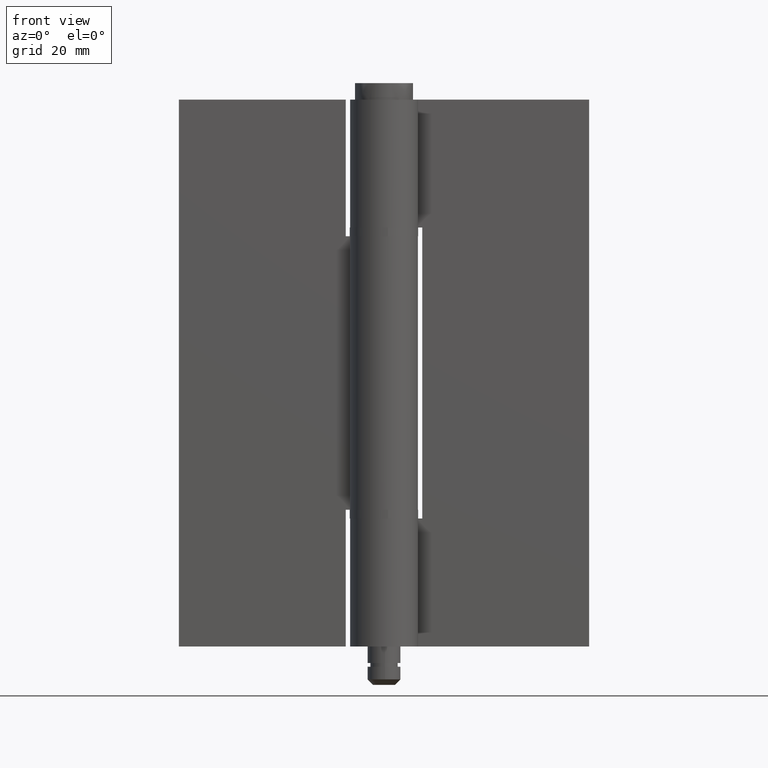
[diagram: clean part render]
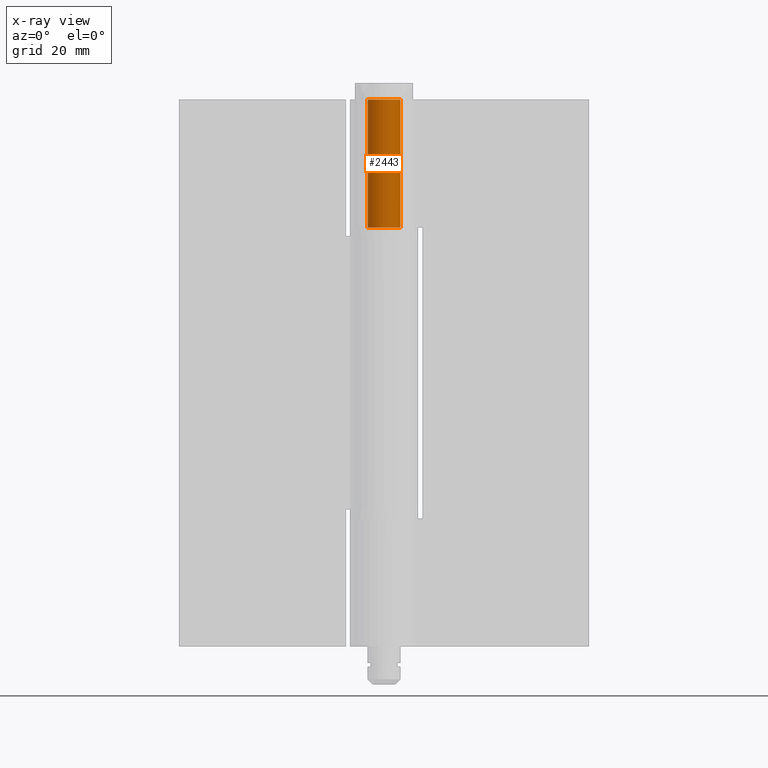
[diagram: x-ray — body ghosted, one internal face saturated and labeled with its STEP entity id]
A machine part, front view, then the same camera in x-ray: the body is ghosted and one INTERNAL B-rep face — a face not visible from any outside direction — is saturated and labeled: STEP entity #2443.
In plain terms, the highlighted face is a freeform B-spline surface patch.
Its self-contained STEP definition (entity closure, byte-faithful):
#1999=CARTESIAN_POINT('',(0.0,3.0,76.599998999999798));
#2000=VERTEX_POINT('',#1999);
#2006=CARTESIAN_POINT('',(2.638650030874095,1.427419354838704,76.599998999999798));
#2007=VERTEX_POINT('',#2006);
#2008=CARTESIAN_POINT('',(2.638650030874094,1.427419354838704,76.599998999999798));
#2009=CARTESIAN_POINT('',(3.726110601328431,-0.582801298311914,76.599998999999798));
#2010=CARTESIAN_POINT('',(2.076765961900380,-2.164957999475275,76.599998999999798));
#2011=CARTESIAN_POINT('',(0.427421322472329,-3.747114700638637,76.599998999999798));
#2012=CARTESIAN_POINT('',(-1.535861636913278,-2.577038810778384,76.599998999999798));
#2013=CARTESIAN_POINT('',(-3.499144596298890,-1.406962920918129,76.599998999999798));
#2014=CARTESIAN_POINT('',(-2.892327473881125,0.796518539540937,76.599998999999798));
#2015=CARTESIAN_POINT('',(-2.285510351463362,3.000000000000000,76.599998999999798));
#2016=CARTESIAN_POINT('',(0.0,3.0,76.599998999999798));
#2024=(BOUNDED_CURVE()B_SPLINE_CURVE(2,(#2008,#2009,#2010,#2011,#2012,#2013,#2014,#2015,#2016),.UNSPECIFIED.,.F.,.U.)B_SPLINE_CURVE_WITH_KNOTS((3,2,2,2,3),(0.0,0.250000000000000,0.500000000000000,0.750000000000000,1.0),.UNSPECIFIED.)CURVE()GEOMETRIC_REPRESENTATION_ITEM()RATIONAL_B_SPLINE_CURVE((1.0,0.795457786386864,1.0,0.795457786386864,1.0,0.795457786386864,1.0,0.795457786386864,1.0))REPRESENTATION_ITEM(''));
#2025=EDGE_CURVE('',#2007,#2000,#2024,.T.);
#2177=CARTESIAN_POINT('',(2.638650030874095,1.427419354838704,99.999992999999805));
#2178=VERTEX_POINT('',#2177);
#2184=CARTESIAN_POINT('',(0.0,3.0,99.999992999999805));
#2185=VERTEX_POINT('',#2184);
#2186=CARTESIAN_POINT('',(2.638650030874094,1.427419354838704,99.999992999999805));
#2187=CARTESIAN_POINT('',(3.726110601328431,-0.582801298311914,99.999992999999790));
#2188=CARTESIAN_POINT('',(2.076765961900380,-2.164957999475275,99.999992999999805));
#2189=CARTESIAN_POINT('',(0.427421322472329,-3.747114700638637,99.999992999999790));
#2190=CARTESIAN_POINT('',(-1.535861636913278,-2.577038810778384,99.999992999999805));
#2191=CARTESIAN_POINT('',(-3.499144596298890,-1.406962920918129,99.999992999999790));
#2192=CARTESIAN_POINT('',(-2.892327473881125,0.796518539540937,99.999992999999805));
#2193=CARTESIAN_POINT('',(-2.285510351463362,3.000000000000000,99.999992999999790));
#2194=CARTESIAN_POINT('',(0.0,3.0,99.999992999999805));
#2202=(BOUNDED_CURVE()B_SPLINE_CURVE(2,(#2186,#2187,#2188,#2189,#2190,#2191,#2192,#2193,#2194),.UNSPECIFIED.,.F.,.U.)B_SPLINE_CURVE_WITH_KNOTS((3,2,2,2,3),(0.0,0.250000000000000,0.500000000000000,0.750000000000000,1.0),.UNSPECIFIED.)CURVE()GEOMETRIC_REPRESENTATION_ITEM()RATIONAL_B_SPLINE_CURVE((1.0,0.795457786386864,1.0,0.795457786386864,1.0,0.795457786386864,1.0,0.795457786386864,1.0))REPRESENTATION_ITEM(''));
#2203=EDGE_CURVE('',#2178,#2185,#2202,.T.);
#2326=CARTESIAN_POINT('',(0.0,3.0,99.999992999999805));
#2327=CARTESIAN_POINT('',(0.0,3.0,76.599998999999798));
#2328=QUASI_UNIFORM_CURVE('',1,(#2326,#2327),.UNSPECIFIED.,.F.,.U.);
#2329=EDGE_CURVE('',#2185,#2000,#2328,.T.);
#2405=CARTESIAN_POINT('',(2.638650030874095,1.427419354838704,99.999992999999805));
#2406=CARTESIAN_POINT('',(2.638650030874095,1.427419354838704,76.599998999999798));
#2407=QUASI_UNIFORM_CURVE('',1,(#2405,#2406),.UNSPECIFIED.,.F.,.U.);
#2408=EDGE_CURVE('',#2178,#2007,#2407,.T.);
#2415=CARTESIAN_POINT('',(0.109309976788393,2.998007893414311,100.584992849999790));
#2416=CARTESIAN_POINT('',(0.109309976788393,2.998007893414311,76.000374153749803));
#2417=CARTESIAN_POINT('',(-3.570980303579125,3.132194479782291,100.584992849999840));
#2418=CARTESIAN_POINT('',(-3.570980303579125,3.132194479782291,76.000374153749817));
#2419=CARTESIAN_POINT('',(-2.958175312532223,-0.499198177405407,100.584992849999790));
#2420=CARTESIAN_POINT('',(-2.958175312532223,-0.499198177405407,76.000374153749803));
#2421=CARTESIAN_POINT('',(-2.345370321485320,-4.130590834593105,100.584992849999840));
#2422=CARTESIAN_POINT('',(-2.345370321485320,-4.130590834593105,76.000374153749817));
#2423=CARTESIAN_POINT('',(1.087080083677276,-2.796114606319312,100.584992849999790));
#2424=CARTESIAN_POINT('',(1.087080083677276,-2.796114606319312,76.000374153749803));
#2425=CARTESIAN_POINT('',(4.519530488839872,-1.461638378045520,100.584992849999840));
#2426=CARTESIAN_POINT('',(4.519530488839872,-1.461638378045520,76.000374153749817));
#2427=CARTESIAN_POINT('',(2.518521921628768,1.630045192709495,100.584992849999790));
#2428=CARTESIAN_POINT('',(2.518521921628768,1.630045192709495,76.000374153749803));
#2436=(BOUNDED_SURFACE()B_SPLINE_SURFACE(1,2,((#2415,#2417,#2419,#2421,#2423,#2425,#2427),(#2416,#2418,#2420,#2422,#2424,#2426,#2428)),.UNSPECIFIED.,.F.,.F.,.U.)B_SPLINE_SURFACE_WITH_KNOTS((2,2),(3,2,2,3),(0.0,24.584618696250018),(0.0,5.702297214197749,11.404594428395500,17.106891642593251),.UNSPECIFIED.)GEOMETRIC_REPRESENTATION_ITEM()RATIONAL_B_SPLINE_SURFACE(((1.0,0.631578351302498,1.0,0.631578351302498,1.0,0.631578351302498,1.0),(1.0,0.631578351302498,1.0,0.631578351302498,1.0,0.631578351302498,1.0)))REPRESENTATION_ITEM('')SURFACE());
#2437=ORIENTED_EDGE('',*,*,#2408,.T.);
#2438=ORIENTED_EDGE('',*,*,#2025,.T.);
#2439=ORIENTED_EDGE('',*,*,#2329,.F.);
#2440=ORIENTED_EDGE('',*,*,#2203,.F.);
#2441=EDGE_LOOP('',(#2437,#2438,#2439,#2440));
#2442=FACE_OUTER_BOUND('',#2441,.T.);
#2443=ADVANCED_FACE('',(#2442),#2436,.F.);